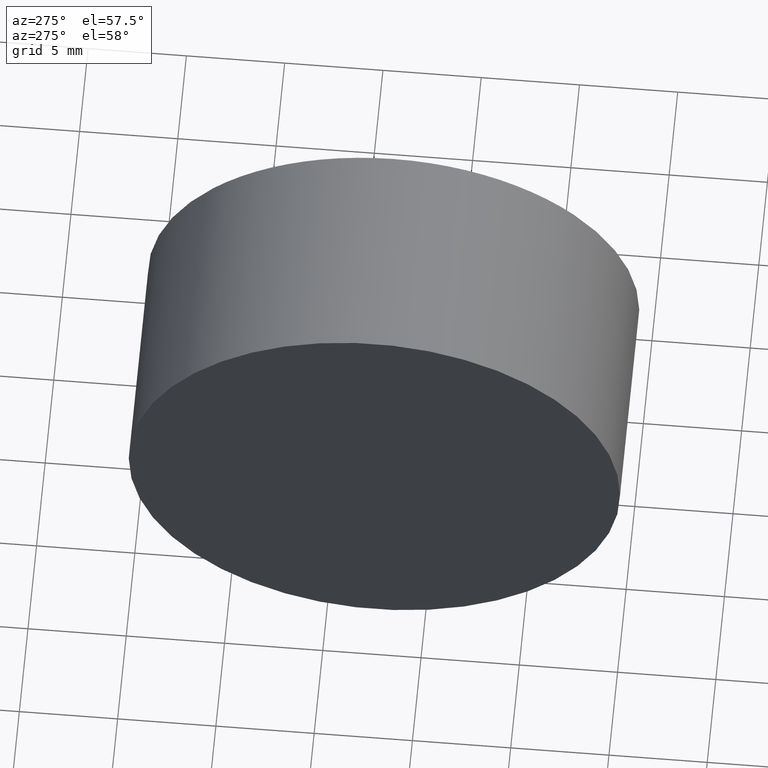
[diagram: clean part render]
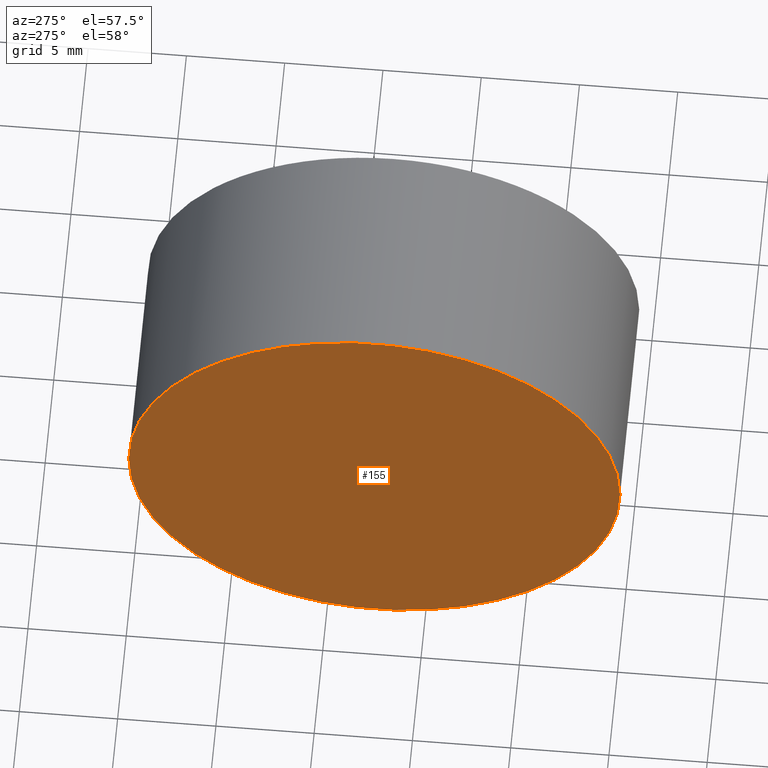
[diagram: same view with one face highlighted and labeled with its STEP entity id]
A machine part, auxiliary view. The second image highlights one B-rep face of the part: STEP entity #155.
In plain terms, the highlighted planar face has unit normal (1, -0, 0).
Its self-contained STEP definition (entity closure, byte-faithful):
#7 = AXIS2_PLACEMENT_3D ( 'NONE', #26, #38, #27 ) ;
#16 = PLANE ( 'NONE',  #7 ) ;
#23 = EDGE_CURVE ( 'NONE', #46, #45, #111, .T. ) ;
#26 = CARTESIAN_POINT ( 'NONE',  ( 57.35819015802111700, 32.57872591329309100, 0.0000000000000000000 ) ) ;
#27 = DIRECTION ( 'NONE',  ( 4.853228644174421400E-016, 1.000000000000000000, 0.0000000000000000000 ) ) ;
#35 = CARTESIAN_POINT ( 'NONE',  ( 57.35819015802111000, 32.57872591329309800, 0.0000000000000000000 ) ) ;
#38 = DIRECTION ( 'NONE',  ( 1.000000000000000000, -4.853228644174421400E-016, 0.0000000000000000000 ) ) ;
#40 = ORIENTED_EDGE ( 'NONE', *, *, #144, .T. ) ;
#45 = VERTEX_POINT ( 'NONE', #127 ) ;
#46 = VERTEX_POINT ( 'NONE', #161 ) ;
#50 = DIRECTION ( 'NONE',  ( -1.000000000000000000, 4.853228644174421400E-016, -0.0000000000000000000 ) ) ;
#70 = DIRECTION ( 'NONE',  ( -1.000000000000000000, 4.853228644174421400E-016, -0.0000000000000000000 ) ) ;
#81 = DIRECTION ( 'NONE',  ( -5.551115123125784700E-016, -1.000000000000000000, 0.0000000000000000000 ) ) ;
#82 = AXIS2_PLACEMENT_3D ( 'NONE', #35, #70, #81 ) ;
#86 = DIRECTION ( 'NONE',  ( -5.551115123125784700E-016, -1.000000000000000000, 0.0000000000000000000 ) ) ;
#111 = CIRCLE ( 'NONE', #82, 12.49999999999999600 ) ;
#114 = CARTESIAN_POINT ( 'NONE',  ( 57.35819015802111000, 32.57872591329309800, 0.0000000000000000000 ) ) ;
#127 = CARTESIAN_POINT ( 'NONE',  ( 57.35819015802110200, 20.07872591329309800, 0.0000000000000000000 ) ) ;
#135 = FACE_OUTER_BOUND ( 'NONE', #165, .T. ) ;
#139 = ORIENTED_EDGE ( 'NONE', *, *, #23, .T. ) ;
#142 = AXIS2_PLACEMENT_3D ( 'NONE', #114, #50, #86 ) ;
#144 = EDGE_CURVE ( 'NONE', #45, #46, #145, .T. ) ;
#145 = CIRCLE ( 'NONE', #142, 12.49999999999999600 ) ;
#155 = ADVANCED_FACE ( 'NONE', ( #135 ), #16, .F. ) ;
#161 = CARTESIAN_POINT ( 'NONE',  ( 57.35819015802111700, 45.07872591329309100, 1.530808498934191900E-015 ) ) ;
#165 = EDGE_LOOP ( 'NONE', ( #40, #139 ) ) ;